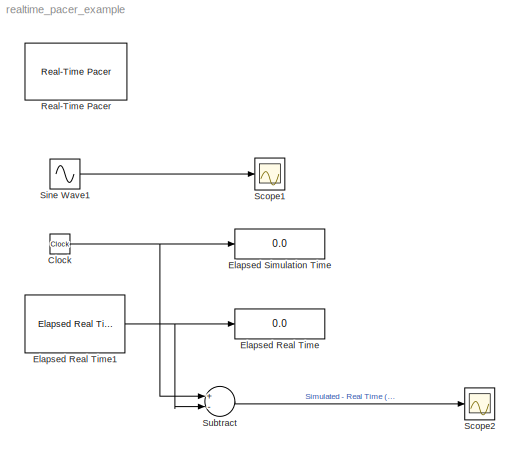
MODEL realtime_pacer_example
KIND model
BLOCK [Clock] Clock
  SID = 6
BLOCK [Display] Elapsed Real Time
  Decimation = 2
  Ports = [1]
  SID = 36
BLOCK [Reference] Elapsed Real Time1  REF=realtime_pacer_lib/Elapsed Real Time
  Ports = [0, 1]
  SID = 43
  SourceBlock = realtime_pacer_lib/Elapsed Real Time
  SourceType = RealTime_Elapsed
BLOCK [Display] Elapsed Simulation Time
  Decimation = 2
  Ports = [1]
  SID = 5
BLOCK [Reference] Real-Time Pacer  REF=realtime_pacer_lib/Real-Time Pacer
  Ports = []
  SID = 30
  SourceBlock = realtime_pacer_lib/Real-Time Pacer
  SourceType = RealTime_Pacer
  simTimePerRealTime = 1
BLOCK [Scope] Scope1
  DataFormat = StructureWithTime
  Floating = off
  NumInputPorts = 1
  Ports = [1]
  SID = 17
  SampleTime = 0
  SaveName = ScopeData1
  ShowLegends = off
BLOCK [Scope] Scope2
  DataFormat = StructureWithTime
  Floating = off
  NumInputPorts = 1
  Ports = [1]
  SID = 32
  SampleTime = 0
  ShowLegends = off
  YMax = -0.01
  YMin = -0.08
BLOCK [Sin] Sine Wave1
  Frequency = 2*pi*0.5
  Ports = [0, 1]
  SID = 27
  SampleTime = 0
BLOCK [Sum] Subtract
  InputSameDT = off
  Inputs = +-
  OutDataTypeStr = Inherit: Inherit via internal rule
  Ports = [2, 1]
  SID = 42
  SaturateOnIntegerOverflow = off
NET Clock:1 -> Elapsed Simulation Time:1, Subtract:1
NET Elapsed Real Time1:1 -> Elapsed Real Time:1, Subtract:2
LINE Sine Wave1:1 -> Scope1:1
LINE Subtract:1 -> Scope2:1
note: NET lines group one-source signal fan-out (src -> all destinations, sorted); 1:1 wires keep LINE
